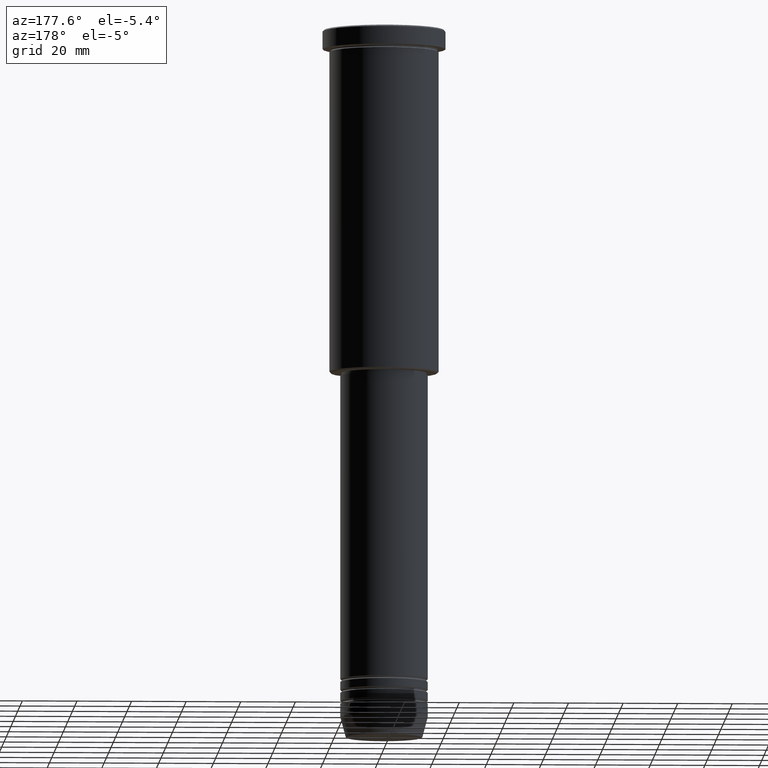
[diagram: clean part render]
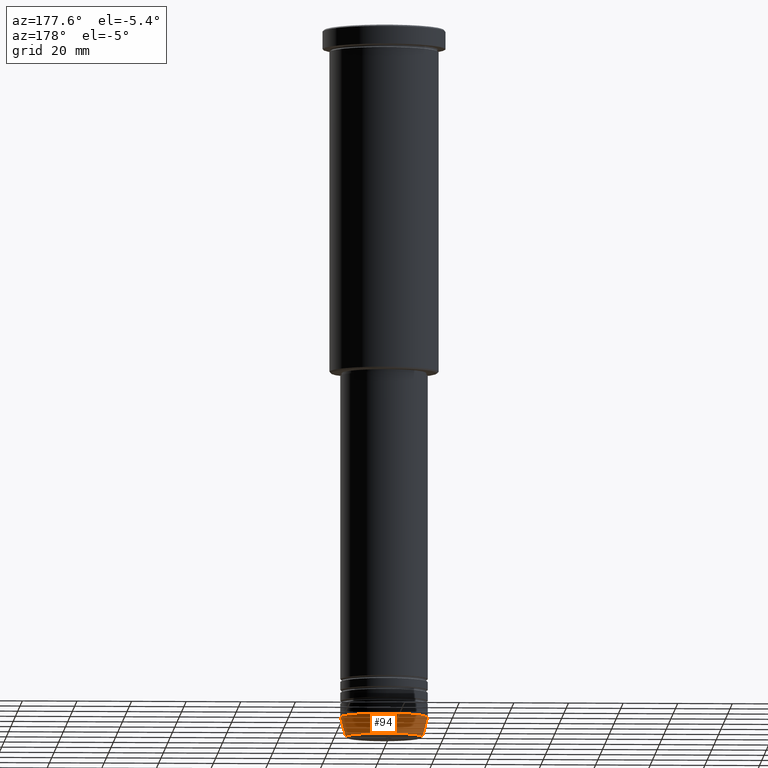
[diagram: same view with one face highlighted and labeled with its STEP entity id]
A machine part, auxiliary view. The second image highlights one B-rep face of the part: STEP entity #94.
In plain terms, the highlighted conical surface has half-angle 15 deg.
Its self-contained STEP definition (entity closure, byte-faithful):
#16 = LINE ( 'NONE', #1110, #542 ) ;
#52 = CARTESIAN_POINT ( 'NONE',  ( 0.000000000000000000, 0.000000000000000000, -252.5000000000000000 ) ) ;
#74 = DIRECTION ( 'NONE',  ( 1.000000000000000000, 0.000000000000000000, 0.000000000000000000 ) ) ;
#94 = ADVANCED_FACE ( 'NONE', ( #959 ), #935, .T. ) ;
#161 = CARTESIAN_POINT ( 'NONE',  ( 0.000000000000000000, 0.000000000000000000, -259.6294095225512706 ) ) ;
#180 = DIRECTION ( 'NONE',  ( 0.2588190451025213501, 0.000000000000000000, 0.9659258262890680902 ) ) ;
#192 = VERTEX_POINT ( 'NONE', #539 ) ;
#247 = DIRECTION ( 'NONE',  ( 1.000000000000000000, 0.000000000000000000, 0.000000000000000000 ) ) ;
#265 = EDGE_CURVE ( 'NONE', #1057, #998, #1180, .T. ) ;
#304 = ORIENTED_EDGE ( 'NONE', *, *, #402, .T. ) ;
#339 = DIRECTION ( 'NONE',  ( 1.000000000000000000, 0.000000000000000000, 0.000000000000000000 ) ) ;
#400 = CARTESIAN_POINT ( 'NONE',  ( 16.00000000000000000, 0.000000000000000000, -252.5000000000000000 ) ) ;
#402 = EDGE_CURVE ( 'NONE', #192, #811, #16, .T. ) ;
#426 = DIRECTION ( 'NONE',  ( -0.000000000000000000, -0.000000000000000000, 1.000000000000000000 ) ) ;
#439 = EDGE_LOOP ( 'NONE', ( #673, #304, #651, #620 ) ) ;
#539 = CARTESIAN_POINT ( 'NONE',  ( -14.08968047592161632, 1.842461544110200874E-15, -259.6294095225512706 ) ) ;
#542 = VECTOR ( 'NONE', #754, 1000.000000000000000 ) ;
#590 = CARTESIAN_POINT ( 'NONE',  ( -16.00000000000000000, 1.959434878635765131E-15, -252.5000000000000000 ) ) ;
#597 = AXIS2_PLACEMENT_3D ( 'NONE', #161, #1059, #339 ) ;
#620 = ORIENTED_EDGE ( 'NONE', *, *, #265, .F. ) ;
#651 = ORIENTED_EDGE ( 'NONE', *, *, #1084, .F. ) ;
#673 = ORIENTED_EDGE ( 'NONE', *, *, #824, .T. ) ;
#731 = VECTOR ( 'NONE', #180, 1000.000000000000000 ) ;
#754 = DIRECTION ( 'NONE',  ( -0.2588190451025213501, 3.169619151431772337E-17, 0.9659258262890680902 ) ) ;
#810 = CARTESIAN_POINT ( 'NONE',  ( 16.00000000000000000, 0.000000000000000000, -252.5000000000000000 ) ) ;
#811 = VERTEX_POINT ( 'NONE', #590 ) ;
#824 = EDGE_CURVE ( 'NONE', #1057, #192, #1120, .T. ) ;
#870 = CARTESIAN_POINT ( 'NONE',  ( 0.000000000000000000, 0.000000000000000000, -252.5000000000000000 ) ) ;
#875 = AXIS2_PLACEMENT_3D ( 'NONE', #870, #426, #74 ) ;
#890 = CARTESIAN_POINT ( 'NONE',  ( 14.08968047592161632, 0.000000000000000000, -259.6294095225512706 ) ) ;
#917 = AXIS2_PLACEMENT_3D ( 'NONE', #52, #1139, #247 ) ;
#935 = CONICAL_SURFACE ( 'NONE', #917, 16.00000000000000000, 0.2617993877991500740 ) ;
#959 = FACE_OUTER_BOUND ( 'NONE', #439, .T. ) ;
#973 = CIRCLE ( 'NONE', #875, 16.00000000000000000 ) ;
#998 = VERTEX_POINT ( 'NONE', #400 ) ;
#1057 = VERTEX_POINT ( 'NONE', #890 ) ;
#1059 = DIRECTION ( 'NONE',  ( -0.000000000000000000, -0.000000000000000000, 1.000000000000000000 ) ) ;
#1084 = EDGE_CURVE ( 'NONE', #998, #811, #973, .T. ) ;
#1110 = CARTESIAN_POINT ( 'NONE',  ( -16.00000000000000000, 1.959434878635765131E-15, -252.5000000000000000 ) ) ;
#1120 = CIRCLE ( 'NONE', #597, 14.08968047592161632 ) ;
#1139 = DIRECTION ( 'NONE',  ( -0.000000000000000000, -0.000000000000000000, 1.000000000000000000 ) ) ;
#1180 = LINE ( 'NONE', #810, #731 ) ;